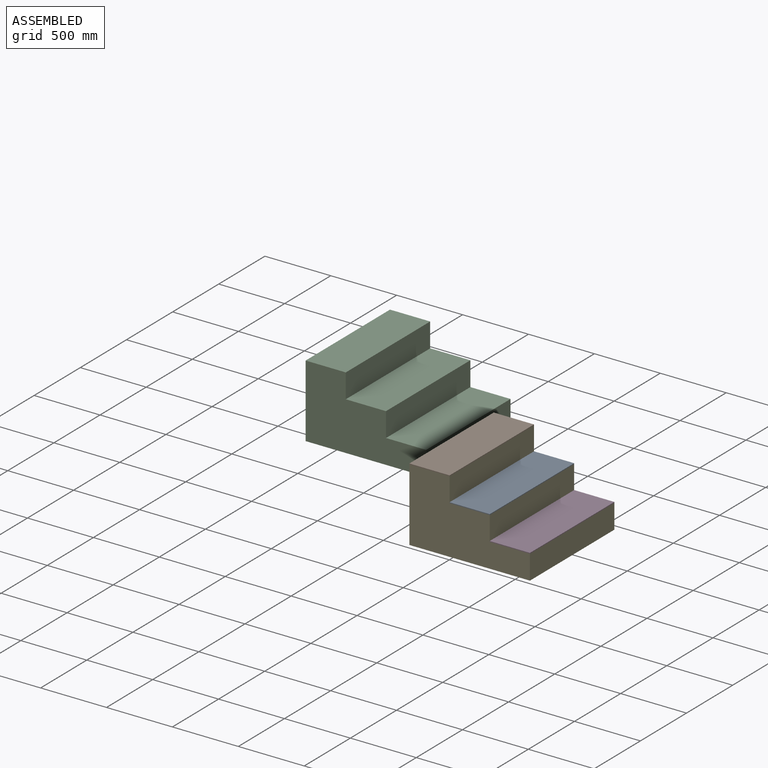
[diagram: assembled view]
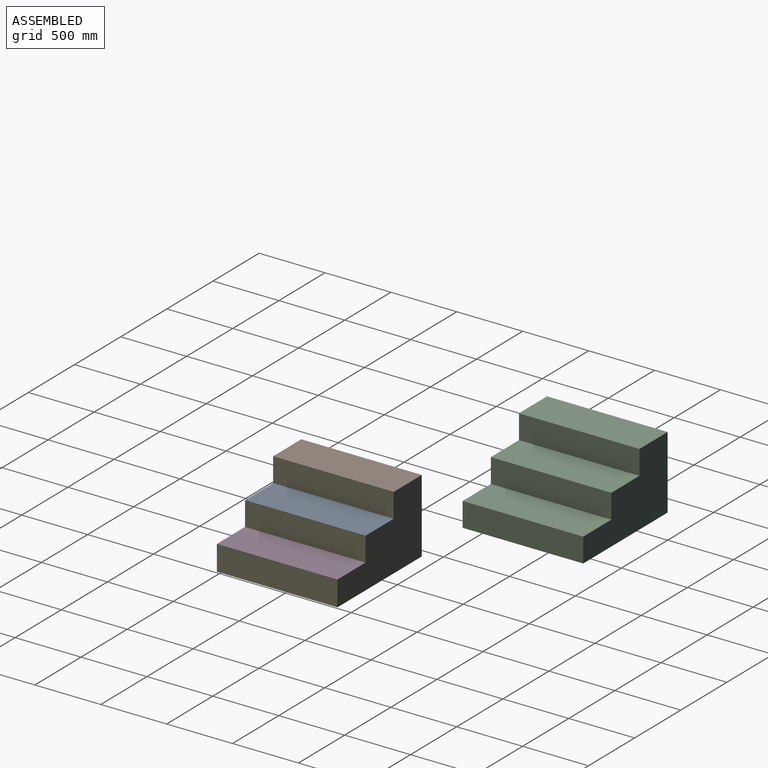
[diagram: assembled view, second angle]
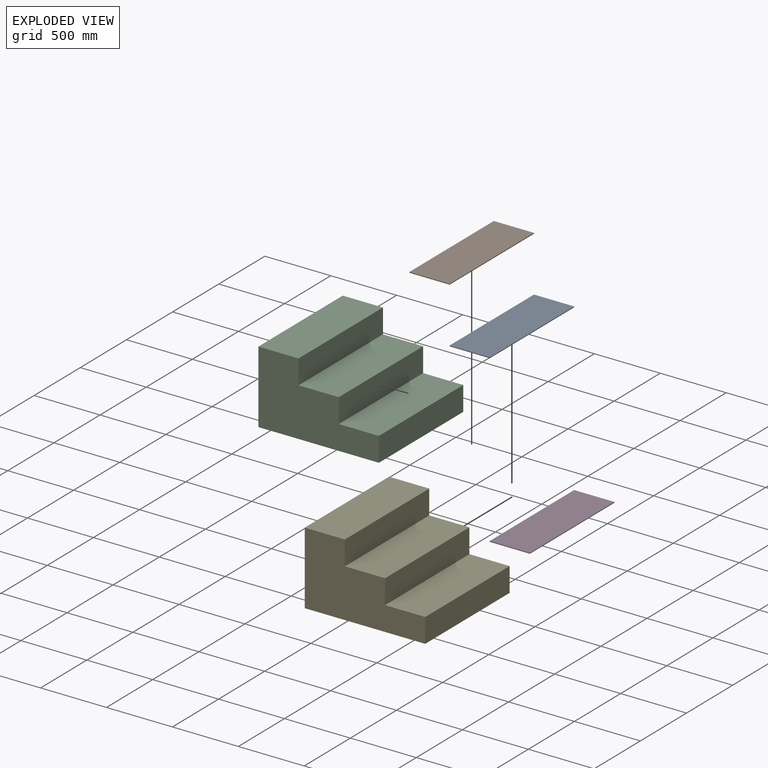
[diagram: exploded view]
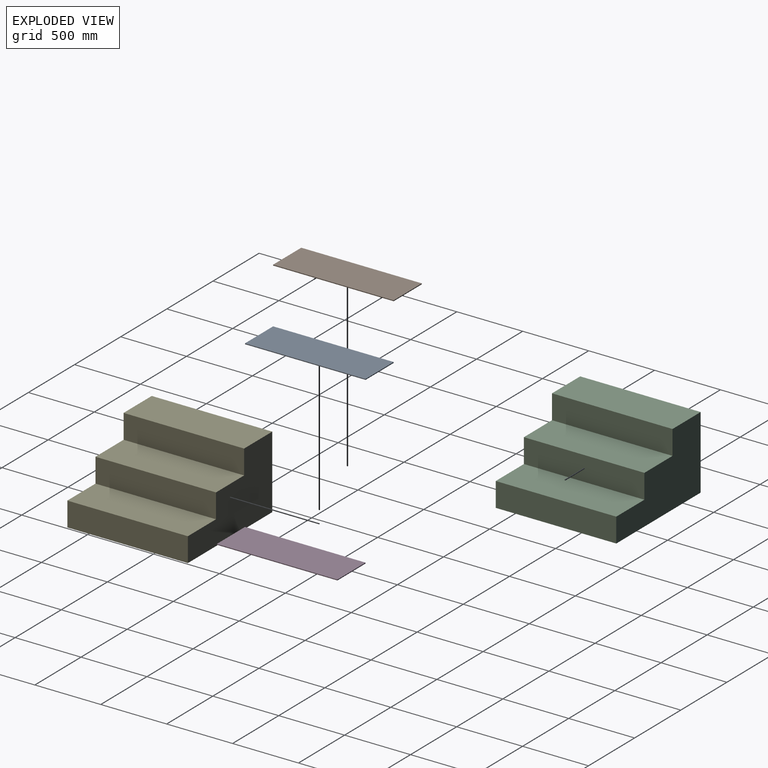
[diagram: exploded view, second angle]
ASSEMBLY  parts=4 mates=3
PART A: 6 faces, bbox 304.8x914.4x6.4 mm
  f0: plane 304.8x6.35mm, normal (0,1,0), area 1935.5mm2, adj f1,f3,f4,f5
  f1: plane 914.4x6.35mm, normal (-1,0,0), area 5806.4mm2, adj f0,f2,f4,f5
  f2: plane 304.8x6.35mm, normal (0,-1,0), area 1935.5mm2, adj f1,f3,f4,f5
  f3: plane 914.4x6.35mm, normal (1,0,0), area 5806.4mm2, adj f0,f2,f4,f5
  f4: plane 914.4x304.8mm, normal (0,0,1), area 278709.1mm2, adj f0,f1,f2,f3
  f5: plane 914.4x304.8mm, normal (0,0,-1), area 278709.1mm2, adj f0,f1,f2,f3
PART B: 6 faces, bbox 304.8x914.4x6.4 mm
  f0: plane 914.4x6.35mm, normal (1,0,0), area 5806.4mm2, adj f1,f3,f4,f5
  f1: plane 304.8x6.35mm, normal (0,1,0), area 1935.5mm2, adj f0,f2,f4,f5
  f2: plane 914.4x6.35mm, normal (-1,0,0), area 5806.4mm2, adj f1,f3,f4,f5
  f3: plane 304.8x6.35mm, normal (0,-1,0), area 1935.5mm2, adj f0,f2,f4,f5
  f4: plane 914.4x304.8mm, normal (0,0,1), area 278709.1mm2, adj f0,f1,f2,f3
  f5: plane 914.4x304.8mm, normal (0,0,-1), area 278709.1mm2, adj f0,f1,f2,f3
PART C: 6 faces, bbox 304.8x914.4x6.4 mm
  f0: plane 304.8x6.35mm, normal (0,1,0), area 1935.5mm2, adj f1,f3,f4,f5
  f1: plane 914.4x6.35mm, normal (-1,0,0), area 5806.4mm2, adj f0,f2,f4,f5
  f2: plane 304.8x6.35mm, normal (0,-1,0), area 1935.5mm2, adj f1,f3,f4,f5
  f3: plane 914.4x6.35mm, normal (1,0,0), area 5806.4mm2, adj f0,f2,f4,f5
  f4: plane 914.4x304.8mm, normal (0,0,1), area 278709.1mm2, adj f0,f1,f2,f3
  f5: plane 914.4x304.8mm, normal (0,0,-1), area 278709.1mm2, adj f0,f1,f2,f3
PART D: 10 faces, bbox 914.4x914.4x552.5 mm
  f0: plane 914.4x184.15mm, normal (1,0,0), area 168386.8mm2, adj f1,f3,f4,f7
  f1: plane 914.4x552.45mm, normal (0,1,0), area 336773.5mm2, adj f0,f2,f4,f5,f6,f7,f8,f9
  f2: plane 914.4x552.45mm, normal (-1,0,0), area 505160.3mm2, adj f1,f3,f4,f5
  f3: plane 914.4x552.45mm, normal (0,-1,0), area 336773.5mm2, adj f0,f2,f4,f5,f6,f7,f8,f9
  f4: plane 914.4x304.8mm, normal (0,0,1), area 278709.1mm2, adj f0,f1,f2,f3
  f5: plane 914.4x914.4mm, normal (0,0,-1), area 836127.4mm2, adj f1,f2,f3,f8
  f6: plane 914.4x184.15mm, normal (1,0,0), area 168386.8mm2, adj f1,f3,f7,f9
  f7: plane 914.4x304.8mm, normal (0,0,1), area 278709.1mm2, adj f0,f1,f3,f6
  f8: plane 914.4x184.15mm, normal (1,0,0), area 168386.8mm2, adj f1,f3,f5,f9
  f9: plane 914.4x304.8mm, normal (0,0,1), area 278709.1mm2, adj f1,f3,f6,f8
PLACE A t=(1404.62,-881.38,0)mm
PLACE B t=(1404.62,-881.38,0)mm
PLACE C t=(1404.62,-881.38,0)mm
PLACE D t=(1404.62,-881.38,0)mm
MATE fastened D.f7 <-> A.f5  axis (0,0,1) through (1861.82,-1338.58,368.3)mm
MATE fastened D.f9 <-> C.f5  axis (0,0,1) through (2166.62,-1338.58,184.15)mm
MATE fastened D.f4 <-> B.f5  axis (0,0,1) through (1557.02,-1338.58,552.45)mm
